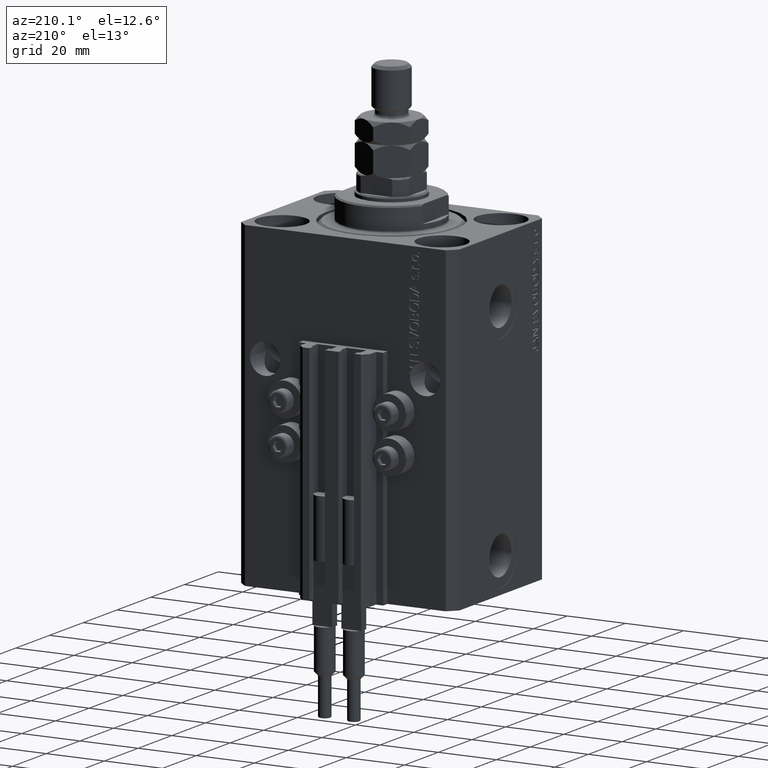
[diagram: clean part render]
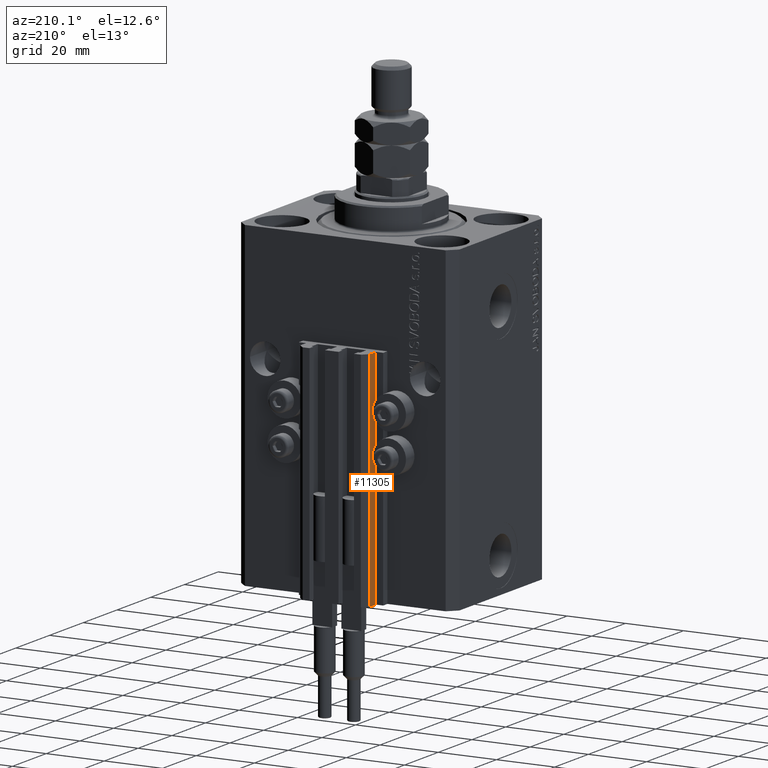
[diagram: same view with one face highlighted and labeled with its STEP entity id]
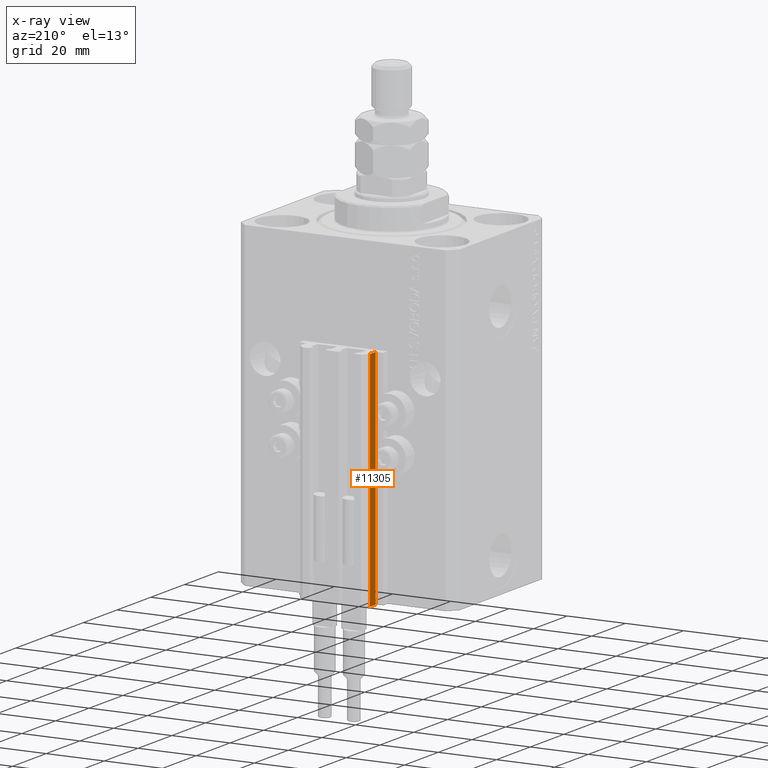
[diagram: x-ray of the same camera — body ghosted, the highlighted face saturated]
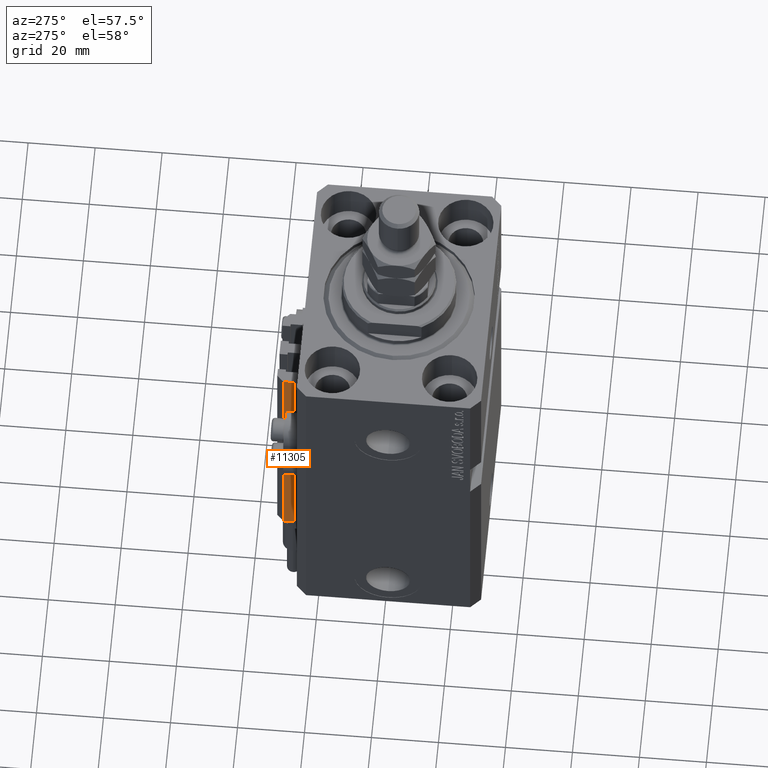
[diagram: same view with one face highlighted and labeled with its STEP entity id]
A machine part, auxiliary view. The second image highlights one B-rep face of the part: STEP entity #11305.
The next image is the same camera in x-ray: the body ghosted, the highlighted face saturated — about 0% of this face is hidden behind the body in this view.
A second angle (auxiliary view) of the same face is appended — the face is thin or edge-on in the first view.
In plain terms, the highlighted planar face has unit normal (-1, 0, 0).
Its self-contained STEP definition (entity closure, byte-faithful):
#3271 = CARTESIAN_POINT ( 'NONE',  ( -12.00000000000000000, 30.19999999999999218, -110.0000000000000000 ) ) ;
#3400 = EDGE_CURVE ( 'NONE', #23127, #43995, #13180, .T. ) ;
#5892 = VECTOR ( 'NONE', #28030, 1000.000000000000000 ) ;
#6350 = EDGE_LOOP ( 'NONE', ( #45296, #21278, #18858, #38522 ) ) ;
#6456 = VECTOR ( 'NONE', #34031, 1000.000000000000000 ) ;
#7639 = PLANE ( 'NONE',  #15695 ) ;
#9361 = VECTOR ( 'NONE', #25857, 1000.000000000000000 ) ;
#9688 = VERTEX_POINT ( 'NONE', #15274 ) ;
#11305 = ADVANCED_FACE ( 'NONE', ( #23206 ), #7639, .T. ) ;
#12656 = CARTESIAN_POINT ( 'NONE',  ( -12.00000000000000000, 33.49999999999998579, -110.0000000000000000 ) ) ;
#13180 = LINE ( 'NONE', #20468, #5892 ) ;
#15274 = CARTESIAN_POINT ( 'NONE',  ( -12.00000000000000000, 30.19999999999999218, -33.00000000000000000 ) ) ;
#15695 = AXIS2_PLACEMENT_3D ( 'NONE', #22728, #27479, #19426 ) ;
#18058 = LINE ( 'NONE', #41500, #9361 ) ;
#18858 = ORIENTED_EDGE ( 'NONE', *, *, #3400, .T. ) ;
#19426 = DIRECTION ( 'NONE',  ( 0.000000000000000000, 0.000000000000000000, 1.000000000000000000 ) ) ;
#20099 = VERTEX_POINT ( 'NONE', #33194 ) ;
#20468 = CARTESIAN_POINT ( 'NONE',  ( -12.00000000000000000, 33.49999999999998579, -110.0000000000000000 ) ) ;
#20589 = VECTOR ( 'NONE', #31527, 1000.000000000000000 ) ;
#21278 = ORIENTED_EDGE ( 'NONE', *, *, #46346, .F. ) ;
#22728 = CARTESIAN_POINT ( 'NONE',  ( -12.00000000000000000, 33.49999999999998579, -110.0000000000000000 ) ) ;
#23127 = VERTEX_POINT ( 'NONE', #12656 ) ;
#23206 = FACE_OUTER_BOUND ( 'NONE', #6350, .T. ) ;
#24939 = CARTESIAN_POINT ( 'NONE',  ( -12.00000000000000000, 30.19999999999999218, -110.0000000000000000 ) ) ;
#25857 = DIRECTION ( 'NONE',  ( 0.000000000000000000, -1.000000000000000000, 0.000000000000000000 ) ) ;
#27479 = DIRECTION ( 'NONE',  ( -1.000000000000000000, 0.000000000000000000, 0.000000000000000000 ) ) ;
#28030 = DIRECTION ( 'NONE',  ( 0.000000000000000000, -1.000000000000000000, 0.000000000000000000 ) ) ;
#31527 = DIRECTION ( 'NONE',  ( 0.000000000000000000, 0.000000000000000000, 1.000000000000000000 ) ) ;
#31640 = EDGE_CURVE ( 'NONE', #43995, #9688, #36062, .T. ) ;
#33194 = CARTESIAN_POINT ( 'NONE',  ( -12.00000000000000000, 33.49999999999998579, -33.00000000000000000 ) ) ;
#34031 = DIRECTION ( 'NONE',  ( 0.000000000000000000, 0.000000000000000000, 1.000000000000000000 ) ) ;
#35508 = EDGE_CURVE ( 'NONE', #20099, #9688, #18058, .T. ) ;
#36062 = LINE ( 'NONE', #24939, #20589 ) ;
#37555 = LINE ( 'NONE', #41318, #6456 ) ;
#38522 = ORIENTED_EDGE ( 'NONE', *, *, #31640, .T. ) ;
#41318 = CARTESIAN_POINT ( 'NONE',  ( -12.00000000000000000, 33.49999999999998579, -110.0000000000000000 ) ) ;
#41500 = CARTESIAN_POINT ( 'NONE',  ( -12.00000000000000000, 33.49999999999998579, -33.00000000000000000 ) ) ;
#43995 = VERTEX_POINT ( 'NONE', #3271 ) ;
#45296 = ORIENTED_EDGE ( 'NONE', *, *, #35508, .F. ) ;
#46346 = EDGE_CURVE ( 'NONE', #23127, #20099, #37555, .T. ) ;